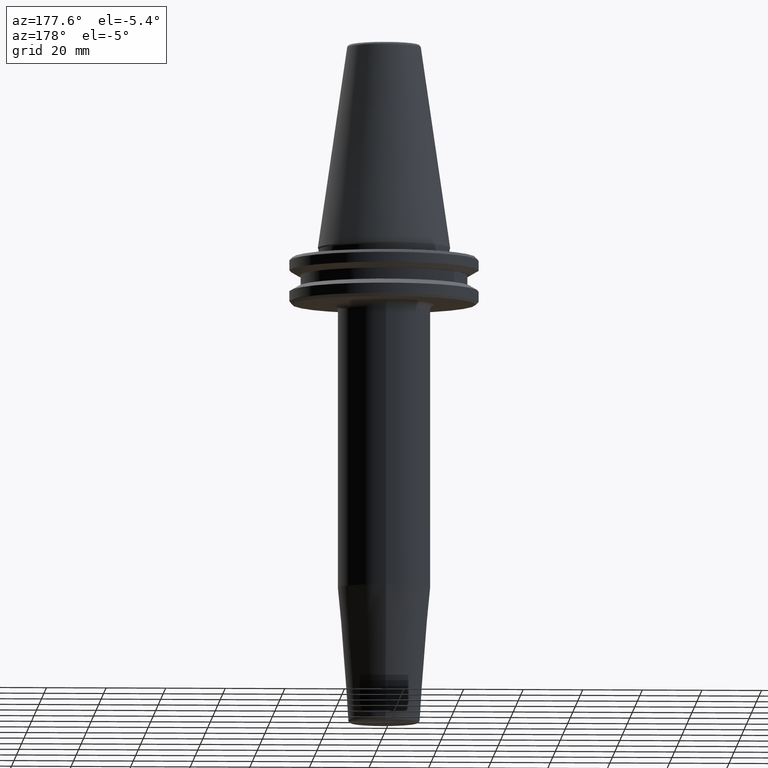
[diagram: clean part render]
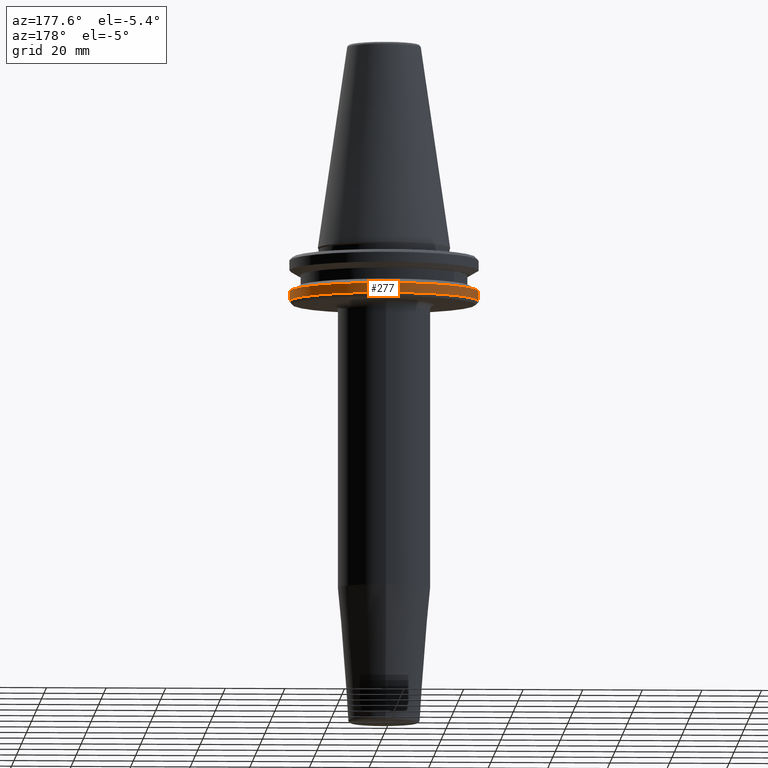
[diagram: same view with one face highlighted and labeled with its STEP entity id]
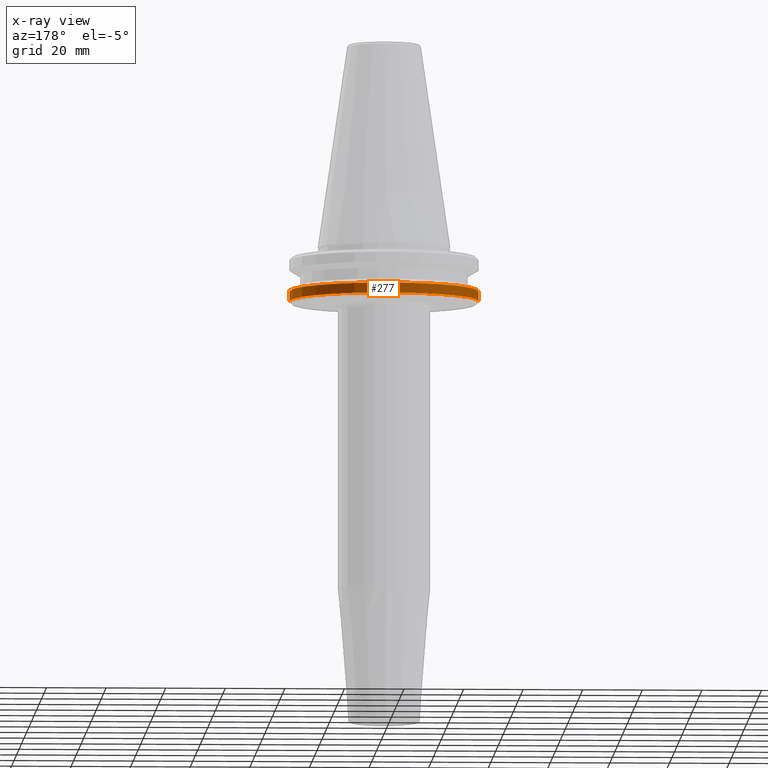
[diagram: x-ray of the same camera — body ghosted, the highlighted face saturated]
A machine part, auxiliary view. The second image highlights one B-rep face of the part: STEP entity #277.
The next image is the same camera in x-ray: the body ghosted, the highlighted face saturated — about 0% of this face is hidden behind the body in this view.
In plain terms, the highlighted cylindrical surface (partial cylindrical patch) has radius 31.75 mm, axis along (-0, -0, 1).
Its self-contained STEP definition (entity closure, byte-faithful):
#7 = DIRECTION ( 'NONE',  ( 1.000000000000000000, 0.0000000000000000000, 0.0000000000000000000 ) ) ;
#14 = VERTEX_POINT ( 'NONE', #1053 ) ;
#43 = ORIENTED_EDGE ( 'NONE', *, *, #450, .F. ) ;
#131 = CYLINDRICAL_SURFACE ( 'NONE', #982, 31.75000000000000000 ) ;
#159 = VERTEX_POINT ( 'NONE', #1120 ) ;
#214 = CARTESIAN_POINT ( 'NONE',  ( -31.75000000000000000, 3.888253587292846500E-015, -14.62183664205671200 ) ) ;
#277 = ADVANCED_FACE ( 'NONE', ( #1158 ), #131, .T. ) ;
#301 = EDGE_CURVE ( 'NONE', #159, #911, #443, .T. ) ;
#315 = CIRCLE ( 'NONE', #1147, 31.75000000000000000 ) ;
#319 = CARTESIAN_POINT ( 'NONE',  ( 0.0000000000000000000, 0.0000000000000000000, -17.93431457505076300 ) ) ;
#361 = VECTOR ( 'NONE', #560, 1000.000000000000000 ) ;
#421 = DIRECTION ( 'NONE',  ( 1.000000000000000000, 0.0000000000000000000, 0.0000000000000000000 ) ) ;
#443 = LINE ( 'NONE', #550, #632 ) ;
#450 = EDGE_CURVE ( 'NONE', #1010, #911, #315, .T. ) ;
#455 = CARTESIAN_POINT ( 'NONE',  ( 0.0000000000000000000, 0.0000000000000000000, 113.5216080541959500 ) ) ;
#462 = DIRECTION ( 'NONE',  ( -0.0000000000000000000, -0.0000000000000000000, 1.000000000000000000 ) ) ;
#550 = CARTESIAN_POINT ( 'NONE',  ( -31.75000000000000000, 3.888253587292846500E-015, 113.5216080541959500 ) ) ;
#560 = DIRECTION ( 'NONE',  ( -0.0000000000000000000, -0.0000000000000000000, 1.000000000000000000 ) ) ;
#607 = EDGE_CURVE ( 'NONE', #14, #1010, #616, .T. ) ;
#610 = ORIENTED_EDGE ( 'NONE', *, *, #301, .T. ) ;
#613 = CARTESIAN_POINT ( 'NONE',  ( 0.0000000000000000000, 0.0000000000000000000, -14.62183664205671200 ) ) ;
#616 = LINE ( 'NONE', #1121, #361 ) ;
#632 = VECTOR ( 'NONE', #1015, 1000.000000000000000 ) ;
#642 = ORIENTED_EDGE ( 'NONE', *, *, #1095, .T. ) ;
#692 = DIRECTION ( 'NONE',  ( -0.0000000000000000000, -0.0000000000000000000, 1.000000000000000000 ) ) ;
#717 = ORIENTED_EDGE ( 'NONE', *, *, #607, .F. ) ;
#729 = EDGE_LOOP ( 'NONE', ( #642, #610, #43, #717 ) ) ;
#820 = DIRECTION ( 'NONE',  ( 1.000000000000000000, 0.0000000000000000000, 0.0000000000000000000 ) ) ;
#911 = VERTEX_POINT ( 'NONE', #214 ) ;
#953 = CARTESIAN_POINT ( 'NONE',  ( 31.75000000000000000, 0.0000000000000000000, -14.62183664205671200 ) ) ;
#982 = AXIS2_PLACEMENT_3D ( 'NONE', #455, #462, #820 ) ;
#990 = DIRECTION ( 'NONE',  ( -0.0000000000000000000, -0.0000000000000000000, 1.000000000000000000 ) ) ;
#1006 = CIRCLE ( 'NONE', #1034, 31.75000000000000000 ) ;
#1010 = VERTEX_POINT ( 'NONE', #953 ) ;
#1015 = DIRECTION ( 'NONE',  ( -0.0000000000000000000, -0.0000000000000000000, 1.000000000000000000 ) ) ;
#1034 = AXIS2_PLACEMENT_3D ( 'NONE', #319, #990, #421 ) ;
#1053 = CARTESIAN_POINT ( 'NONE',  ( 31.75000000000000000, 0.0000000000000000000, -17.93431457505076300 ) ) ;
#1095 = EDGE_CURVE ( 'NONE', #14, #159, #1006, .T. ) ;
#1120 = CARTESIAN_POINT ( 'NONE',  ( -31.75000000000000000, 3.888253587292846500E-015, -17.93431457505076300 ) ) ;
#1121 = CARTESIAN_POINT ( 'NONE',  ( 31.75000000000000000, 0.0000000000000000000, 113.5216080541959500 ) ) ;
#1147 = AXIS2_PLACEMENT_3D ( 'NONE', #613, #692, #7 ) ;
#1158 = FACE_OUTER_BOUND ( 'NONE', #729, .T. ) ;